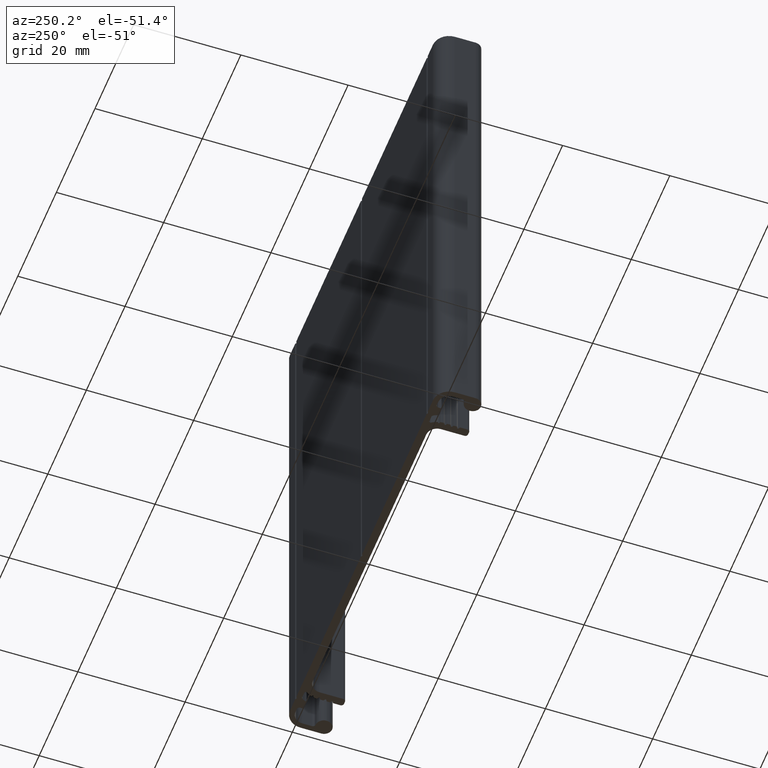
[diagram: clean part render]
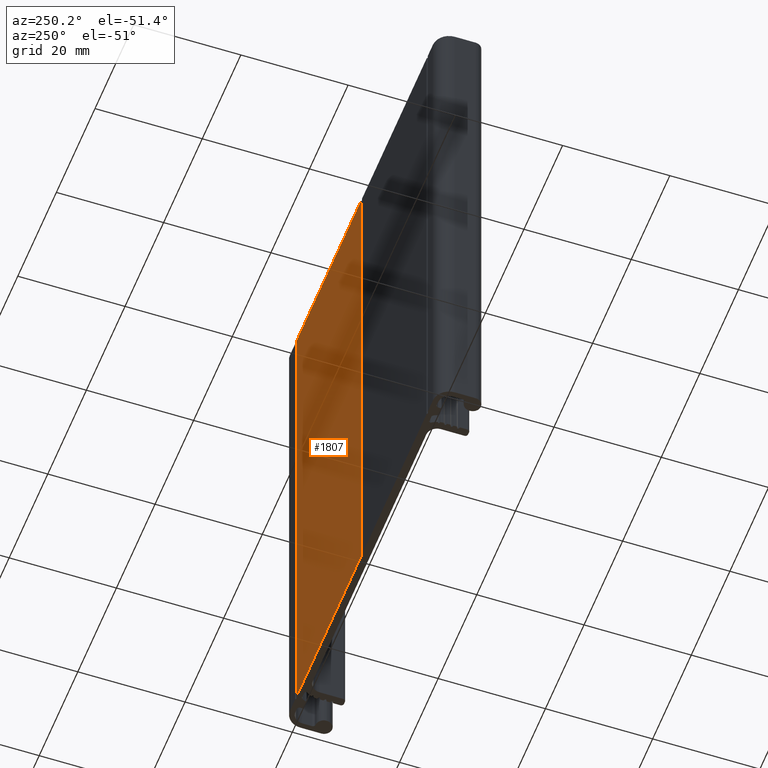
[diagram: same view with one face highlighted and labeled with its STEP entity id]
A machine part, auxiliary view. The second image highlights one B-rep face of the part: STEP entity #1807.
In plain terms, the highlighted planar face has unit normal (0, 1, 0).
Its self-contained STEP definition (entity closure, byte-faithful):
#196=FACE_OUTER_BOUND('',#288,.T.);
#288=EDGE_LOOP('',(#1406,#1407,#1408,#1409));
#456=LINE('',#2928,#648);
#457=LINE('',#2931,#649);
#458=LINE('',#2933,#650);
#459=LINE('',#2934,#651);
#648=VECTOR('',#2381,100.);
#649=VECTOR('',#2384,33.4500000006487);
#650=VECTOR('',#2385,33.4500000006487);
#651=VECTOR('',#2386,100.);
#828=VERTEX_POINT('',#2924);
#829=VERTEX_POINT('',#2926);
#830=VERTEX_POINT('',#2930);
#831=VERTEX_POINT('',#2932);
#1072=EDGE_CURVE('',#828,#829,#456,.T.);
#1073=EDGE_CURVE('',#830,#828,#457,.T.);
#1074=EDGE_CURVE('',#831,#829,#458,.T.);
#1075=EDGE_CURVE('',#830,#831,#459,.T.);
#1406=ORIENTED_EDGE('',*,*,#1073,.T.);
#1407=ORIENTED_EDGE('',*,*,#1072,.T.);
#1408=ORIENTED_EDGE('',*,*,#1074,.F.);
#1409=ORIENTED_EDGE('',*,*,#1075,.F.);
#1728=PLANE('',#1953);
#1807=ADVANCED_FACE('',(#196),#1728,.T.);
#1953=AXIS2_PLACEMENT_3D('',#2929,#2382,#2383);
#2381=DIRECTION('',(0.,0.,1.));
#2382=DIRECTION('center_axis',(1.572401069973E-12,1.,0.));
#2383=DIRECTION('ref_axis',(-1.,1.57240886977661E-12,0.));
#2384=DIRECTION('',(-1.,1.572401069973E-12,0.));
#2385=DIRECTION('',(-1.,1.572401069973E-12,0.));
#2386=DIRECTION('',(0.,0.,1.));
#2924=CARTESIAN_POINT('',(0.300000017549875,1.50000002846154,0.));
#2926=CARTESIAN_POINT('',(0.300000017549875,1.50000002846154,100.));
#2928=CARTESIAN_POINT('',(0.300000017549875,1.50000002846154,0.));
#2929=CARTESIAN_POINT('Origin',(33.7500000181986,1.50000002840894,0.));
#2930=CARTESIAN_POINT('',(33.7500000181986,1.50000002840894,0.));
#2931=CARTESIAN_POINT('',(33.7500000181986,1.50000002840894,0.));
#2932=CARTESIAN_POINT('',(33.7500000181986,1.50000002840894,100.));
#2933=CARTESIAN_POINT('',(33.7500000181986,1.50000002840894,100.));
#2934=CARTESIAN_POINT('',(33.7500000181986,1.50000002840894,0.));